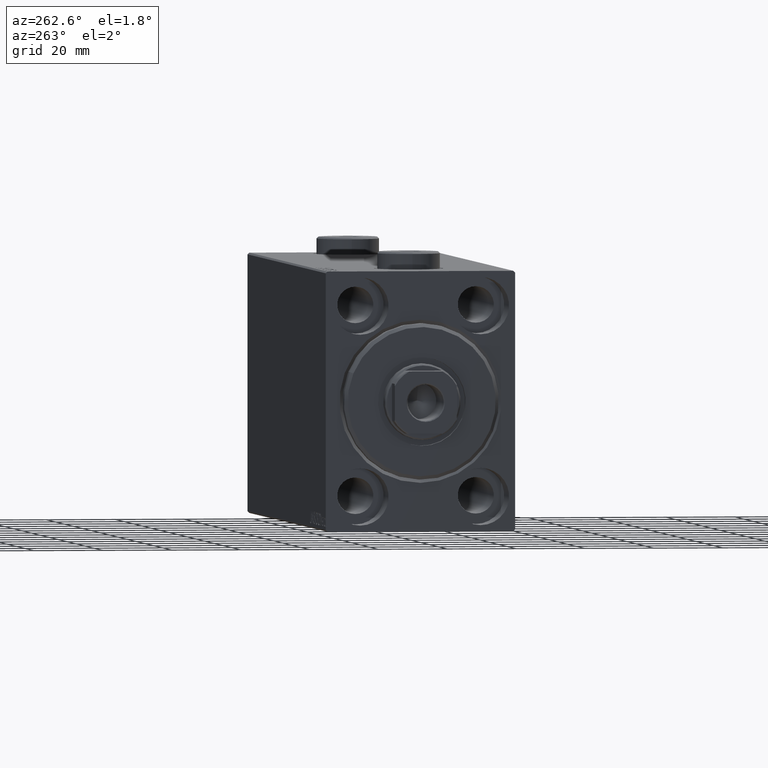
[diagram: clean part render]
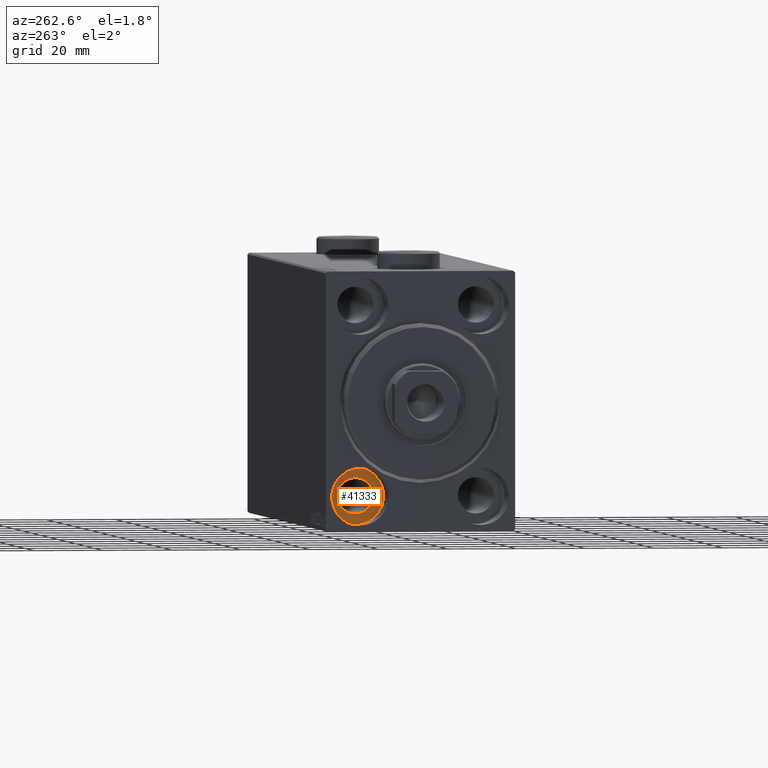
[diagram: same view with one face highlighted and labeled with its STEP entity id]
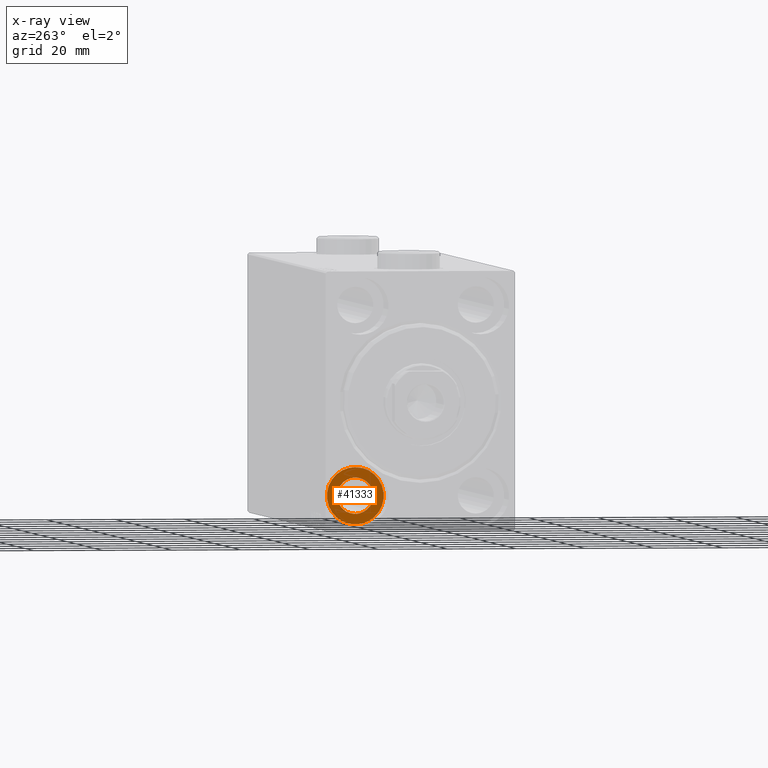
[diagram: x-ray of the same camera — body ghosted, the highlighted face saturated]
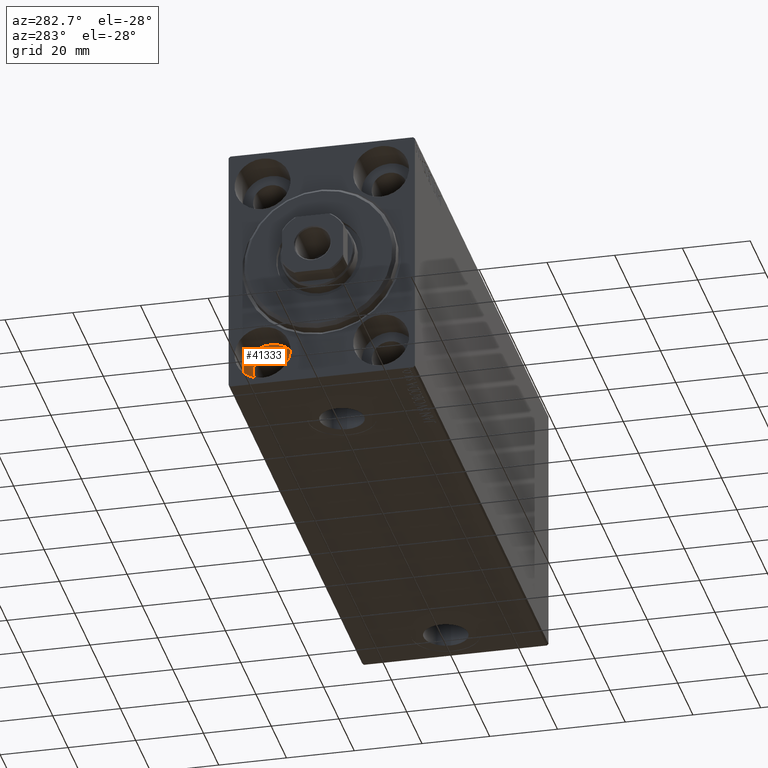
[diagram: same view with one face highlighted and labeled with its STEP entity id]
A machine part, auxiliary view. The second image highlights one B-rep face of the part: STEP entity #41333.
The next image is the same camera in x-ray: the body ghosted, the highlighted face saturated — about 0% of this face is hidden behind the body in this view.
A second angle (auxiliary view) of the same face is appended — the face is thin or edge-on in the first view.
In plain terms, the highlighted planar face has unit normal (-1, 0, 0).
Its self-contained STEP definition (entity closure, byte-faithful):
#726 = CARTESIAN_POINT ( 'NONE',  ( 11.00000000000001066, 17.49999999999999645, -22.25000000000000355 ) ) ;
#1399 = DIRECTION ( 'NONE',  ( -1.000000000000000000, 0.000000000000000000, 0.000000000000000000 ) ) ;
#2554 = FACE_BOUND ( 'NONE', #3676, .T. ) ;
#2644 = CARTESIAN_POINT ( 'NONE',  ( 11.00000000000001066, 17.49999999999999645, -32.75000000000000000 ) ) ;
#3676 = EDGE_LOOP ( 'NONE', ( #39764, #15668 ) ) ;
#4117 = DIRECTION ( 'NONE',  ( -1.000000000000000000, 0.000000000000000000, 0.000000000000000000 ) ) ;
#5307 = PLANE ( 'NONE',  #23702 ) ;
#5935 = CIRCLE ( 'NONE', #17578, 5.250000000000000888 ) ;
#6264 = CARTESIAN_POINT ( 'NONE',  ( 11.00000000000000000, 17.49999999999999645, -35.75000000000000711 ) ) ;
#7331 = AXIS2_PLACEMENT_3D ( 'NONE', #20832, #34762, #42523 ) ;
#8720 = CARTESIAN_POINT ( 'NONE',  ( 11.00000000000000000, 17.49999999999999645, -27.50000000000000355 ) ) ;
#11016 = CARTESIAN_POINT ( 'NONE',  ( 11.00000000000001066, 17.49999999999999645, -27.50000000000000355 ) ) ;
#11714 = CIRCLE ( 'NONE', #7331, 8.250000000000000000 ) ;
#11891 = EDGE_CURVE ( 'NONE', #35813, #38360, #21884, .T. ) ;
#11892 = DIRECTION ( 'NONE',  ( 0.000000000000000000, 0.000000000000000000, 1.000000000000000000 ) ) ;
#12154 = CARTESIAN_POINT ( 'NONE',  ( 11.00000000000001066, 17.49999999999999645, -27.50000000000000355 ) ) ;
#12563 = DIRECTION ( 'NONE',  ( 0.000000000000000000, 0.000000000000000000, 1.000000000000000000 ) ) ;
#13066 = DIRECTION ( 'NONE',  ( -1.000000000000000000, 0.000000000000000000, 0.000000000000000000 ) ) ;
#15462 = EDGE_CURVE ( 'NONE', #25770, #21088, #5935, .T. ) ;
#15668 = ORIENTED_EDGE ( 'NONE', *, *, #25199, .F. ) ;
#17578 = AXIS2_PLACEMENT_3D ( 'NONE', #12154, #1399, #28615 ) ;
#17955 = CARTESIAN_POINT ( 'NONE',  ( 11.00000000000000000, 17.49999999999999645, -19.25000000000000355 ) ) ;
#18954 = DIRECTION ( 'NONE',  ( -1.000000000000000000, 0.000000000000000000, 0.000000000000000000 ) ) ;
#20433 = AXIS2_PLACEMENT_3D ( 'NONE', #42508, #4117, #11892 ) ;
#20832 = CARTESIAN_POINT ( 'NONE',  ( 11.00000000000000000, 17.49999999999999645, -27.50000000000000355 ) ) ;
#21088 = VERTEX_POINT ( 'NONE', #2644 ) ;
#21884 = CIRCLE ( 'NONE', #20433, 8.250000000000000000 ) ;
#21887 = CIRCLE ( 'NONE', #37208, 5.250000000000000888 ) ;
#23702 = AXIS2_PLACEMENT_3D ( 'NONE', #8720, #13066, #30210 ) ;
#24142 = EDGE_LOOP ( 'NONE', ( #30112, #40884 ) ) ;
#25199 = EDGE_CURVE ( 'NONE', #21088, #25770, #21887, .T. ) ;
#25770 = VERTEX_POINT ( 'NONE', #726 ) ;
#28615 = DIRECTION ( 'NONE',  ( 0.000000000000000000, 0.000000000000000000, 1.000000000000000000 ) ) ;
#30112 = ORIENTED_EDGE ( 'NONE', *, *, #32620, .T. ) ;
#30210 = DIRECTION ( 'NONE',  ( 0.000000000000000000, 0.000000000000000000, 1.000000000000000000 ) ) ;
#32620 = EDGE_CURVE ( 'NONE', #38360, #35813, #11714, .T. ) ;
#34762 = DIRECTION ( 'NONE',  ( -1.000000000000000000, 0.000000000000000000, 0.000000000000000000 ) ) ;
#35813 = VERTEX_POINT ( 'NONE', #6264 ) ;
#37208 = AXIS2_PLACEMENT_3D ( 'NONE', #11016, #18954, #12563 ) ;
#38360 = VERTEX_POINT ( 'NONE', #17955 ) ;
#39764 = ORIENTED_EDGE ( 'NONE', *, *, #15462, .F. ) ;
#40884 = ORIENTED_EDGE ( 'NONE', *, *, #11891, .T. ) ;
#41333 = ADVANCED_FACE ( 'NONE', ( #2554, #43912 ), #5307, .T. ) ;
#42508 = CARTESIAN_POINT ( 'NONE',  ( 11.00000000000000000, 17.49999999999999645, -27.50000000000000355 ) ) ;
#42523 = DIRECTION ( 'NONE',  ( 0.000000000000000000, 0.000000000000000000, 1.000000000000000000 ) ) ;
#43912 = FACE_OUTER_BOUND ( 'NONE', #24142, .T. ) ;